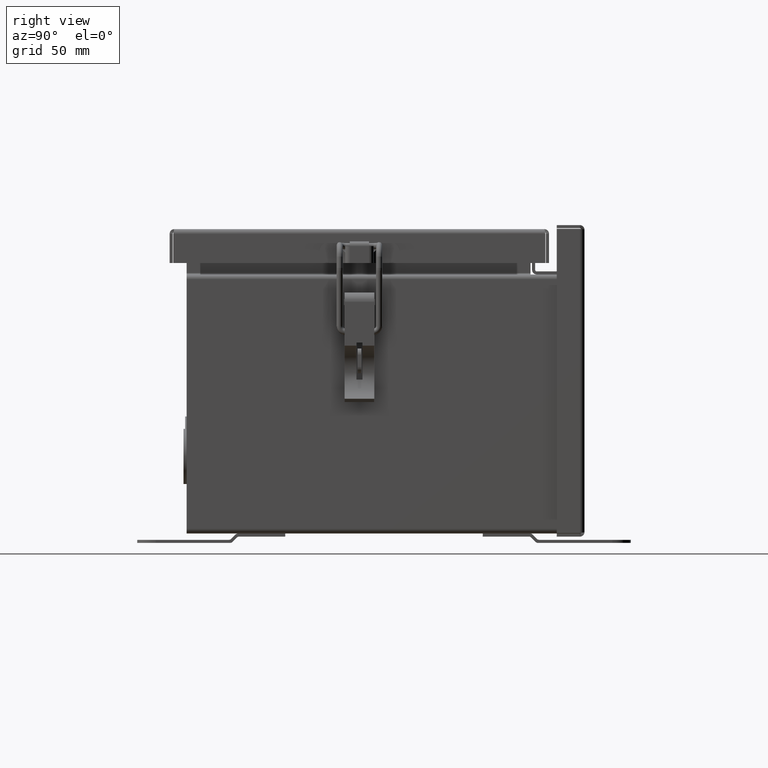
[diagram: clean part render]
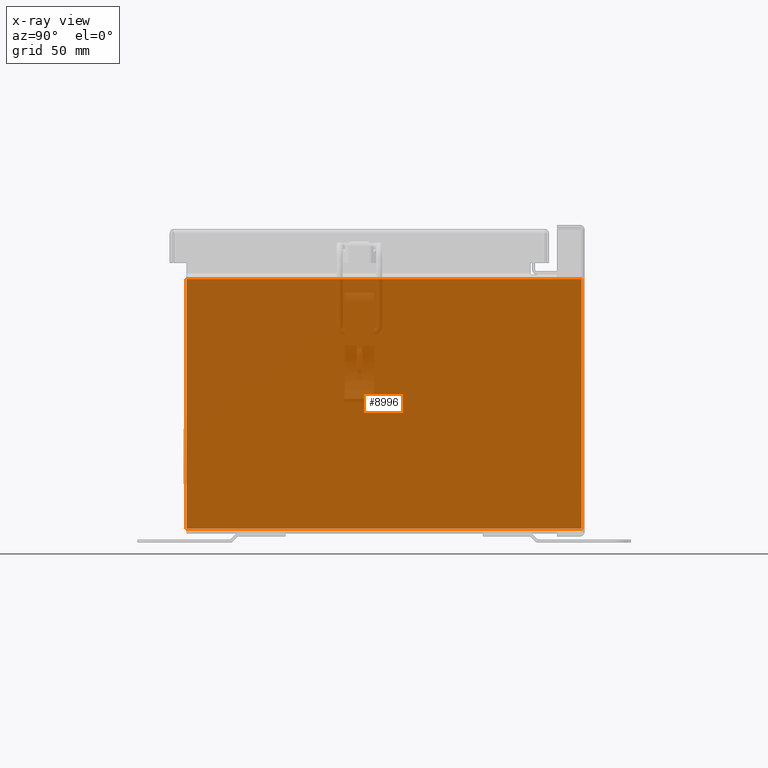
[diagram: x-ray — body ghosted, one internal face saturated and labeled with its STEP entity id]
A machine part, right view, then the same camera in x-ray: the body is ghosted and one INTERNAL B-rep face — a face not visible from any outside direction — is saturated and labeled: STEP entity #8996.
In plain terms, the highlighted planar face has unit normal (1, 0, -0).
Its self-contained STEP definition (entity closure, byte-faithful):
#346=PLANE($,#9574);
#712=FACE_OUTER_BOUND($,#1221,.T.);
#1221=EDGE_LOOP($,(#6080,#6081,#6082,#6083));
#2127=LINE($,#13025,#3053);
#2128=LINE($,#13028,#3054);
#2131=LINE($,#13034,#3057);
#2132=LINE($,#13035,#3058);
#3053=VECTOR($,#10508,8.);
#3054=VECTOR($,#10511,5.0625);
#3057=VECTOR($,#10516,5.0625);
#3058=VECTOR($,#10517,8.);
#3954=VERTEX_POINT($,#13014);
#3955=VERTEX_POINT($,#13018);
#3956=VERTEX_POINT($,#13027);
#3958=VERTEX_POINT($,#13033);
#4764=EDGE_CURVE($,#3954,#3955,#2127,.T.);
#4765=EDGE_CURVE($,#3954,#3956,#2128,.T.);
#4768=EDGE_CURVE($,#3955,#3958,#2131,.T.);
#4769=EDGE_CURVE($,#3958,#3956,#2132,.T.);
#6080=ORIENTED_EDGE($,*,*,#4764,.T.);
#6081=ORIENTED_EDGE($,*,*,#4768,.T.);
#6082=ORIENTED_EDGE($,*,*,#4769,.T.);
#6083=ORIENTED_EDGE($,*,*,#4765,.F.);
#8996=ADVANCED_FACE($,(#712),#346,.T.);
#9574=AXIS2_PLACEMENT_3D($,#13032,#10514,#10515);
#10508=DIRECTION($,(1.75130135696402E-016,-1.,1.74838271594513E-016));
#10511=DIRECTION($,(-8.88178419700125E-015,-1.60075145357552E-030,-1.));
#10514=DIRECTION('center_axis',(1.,1.751301356964E-016,-8.83104890393933E-015));
#10515=DIRECTION('ref_axis',(-9.02389274415328E-015,-1.74838271594515E-016,
-1.));
#10516=DIRECTION($,(-8.88178419700125E-015,-1.60075145357552E-030,-1.));
#10517=DIRECTION($,(-1.751301356964E-016,1.,2.57440244590565E-033));
#13014=CARTESIAN_POINT('',(-3.93749999999996,4.,5.15625));
#13018=CARTESIAN_POINT('',(-3.93749999999996,-4.,5.15625));
#13025=CARTESIAN_POINT($,(-3.93749999999996,-2.,5.15625));
#13027=CARTESIAN_POINT('',(-3.9375,4.,0.09375));
#13028=CARTESIAN_POINT($,(-3.9375,4.,-0.090818568398401));
#13032=CARTESIAN_POINT('Origin',(-3.93749999999998,1.03682092150616E-016,
2.6257328579004));
#13033=CARTESIAN_POINT('',(-3.9375,-4.,0.09375));
#13034=CARTESIAN_POINT($,(-3.9375,-4.,-0.090818568398401));
#13035=CARTESIAN_POINT($,(-3.9375,4.91132112130427E-017,0.09375));